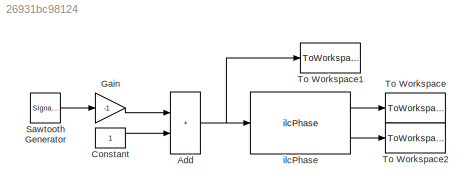
MODEL slx_26931bc98124
KIND model
CONFIG AbsTol = auto
CONFIG EnableMultiTasking = off
CONFIG FixedStep = 0.001
CONFIG MaxStep = auto
CONFIG MinStep = auto
CONFIG RelTol = 1e-3
CONFIG SampleTimeConstraint = Unconstrained
CONFIG SolverName = FixedStepAuto
CONFIG StartTime = 0.0
CONFIG StopTime = 10.0
BLOCK [Sum] Add
  IconShape = rectangular
  Ports = [2, 1]
BLOCK [Constant] Constant
BLOCK [Gain] Gain
  Gain = -1
BLOCK [SignalGenerator] Sawtooth Generator
  Ports = [0, 1]
  WaveForm = sawtooth
BLOCK [ToWorkspace] To Workspace
  FixptAsFi = on
  MaxDataPoints = inf
  Ports = [1]
  SampleTime = -1
  SaveFormat = Timeseries
  VariableName = simout
BLOCK [ToWorkspace] To Workspace1
  FixptAsFi = on
  MaxDataPoints = inf
  Ports = [1]
  SampleTime = -1
  SaveFormat = Timeseries
  VariableName = simout1
BLOCK [ToWorkspace] To Workspace2
  FixptAsFi = on
  MaxDataPoints = inf
  Ports = [1]
  SampleTime = -1
  SaveFormat = Timeseries
  VariableName = iterNum
BLOCK [Reference] ilcPhase  REF=ilcPhase_cl/ilcPhase
  Ports = [1, 2]
  SourceBlock = ilcPhase_cl/ilcPhase
NET Add:1 -> To Workspace1:1, ilcPhase:1
LINE Constant:1 -> Add:2
LINE Gain:1 -> Add:1
LINE Sawtooth Generator:1 -> Gain:1
LINE ilcPhase:1 -> To Workspace:1
LINE ilcPhase:2 -> To Workspace2:1
note: NET lines group one-source signal fan-out (src -> all destinations, sorted); 1:1 wires keep LINE
